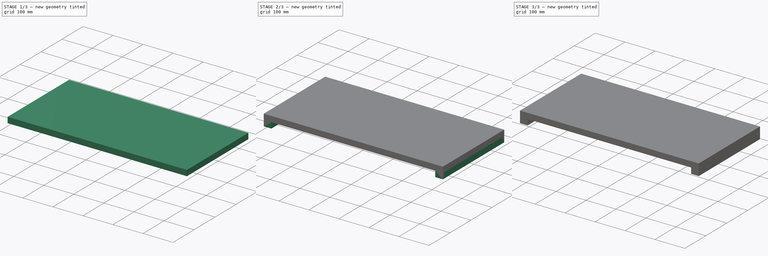
[diagram: build sequence overview — one tinted view per stage of 3, left to right]
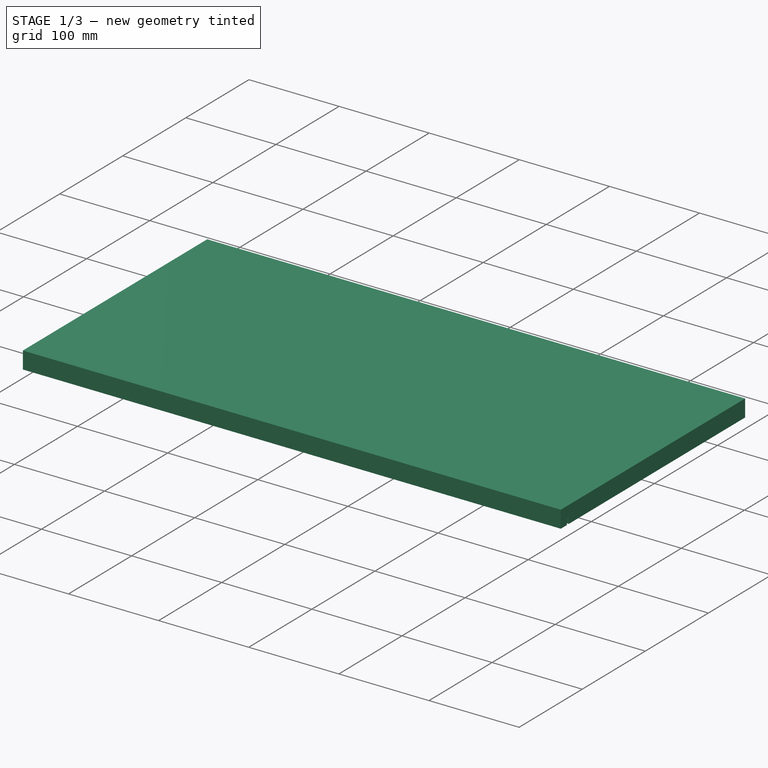
[diagram: stage 1 of 3 — iso view after this stage's code; geometry added in this stage tinted green]
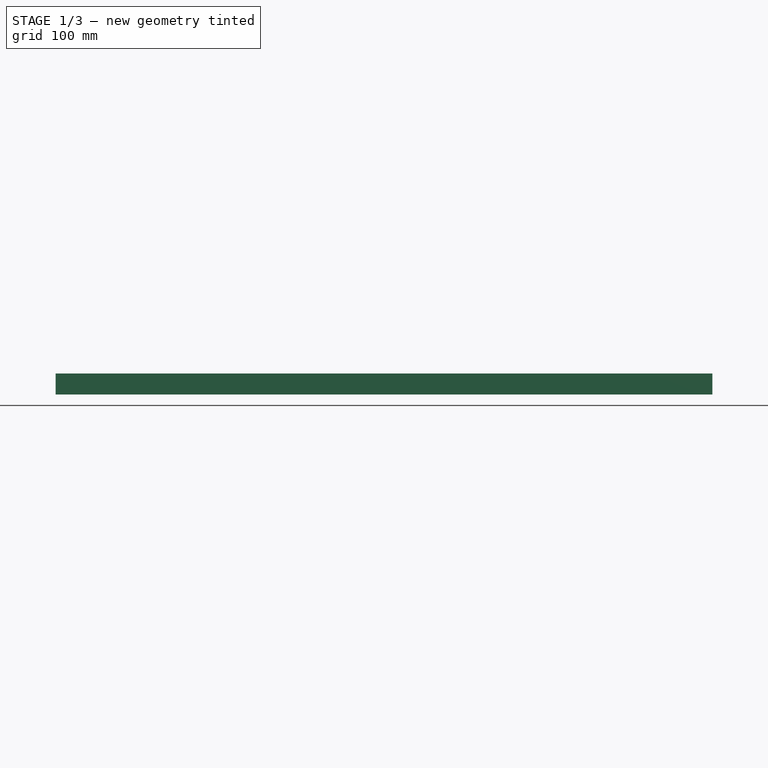
[diagram: stage 1 of 3 — front view after this stage's code; geometry added in this stage tinted green]
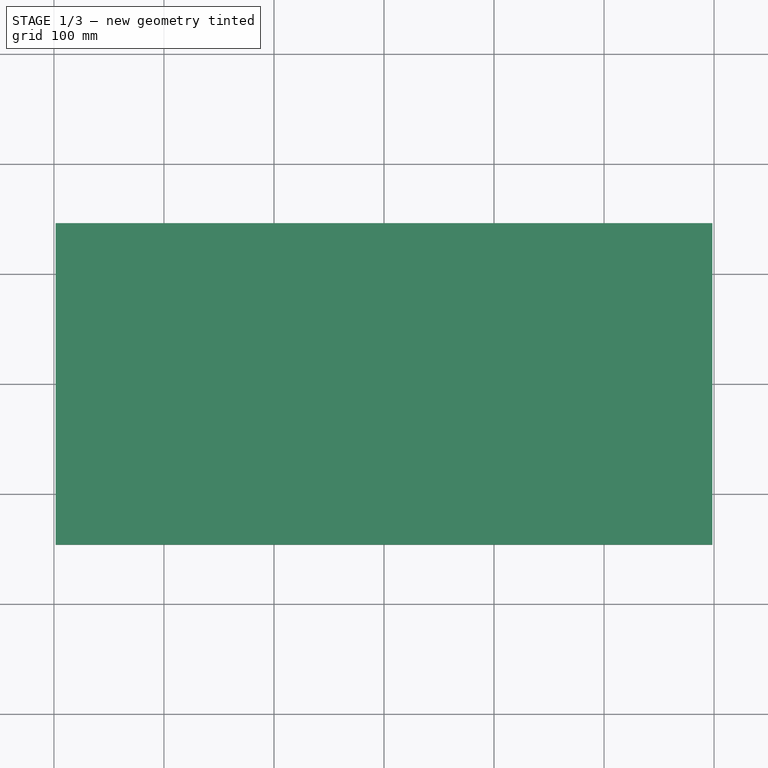
[diagram: stage 1 of 3 — top view after this stage's code; geometry added in this stage tinted green]
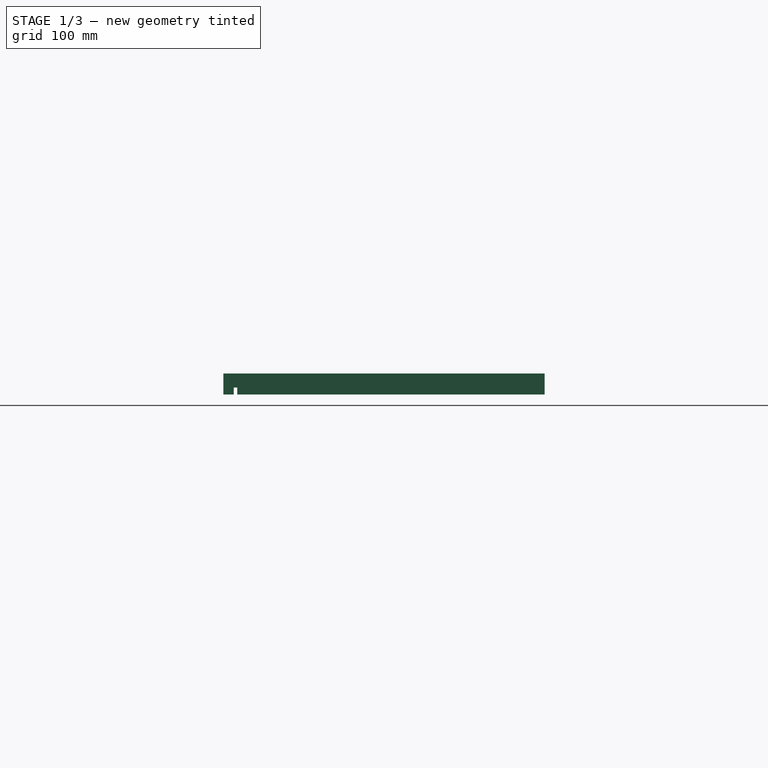
[diagram: stage 1 of 3 — right view after this stage's code; geometry added in this stage tinted green]
FCSTD DOCUMENT  (FreeCAD 0.19R24291 (Git))
Label: toppanel
License: All rights reserved
LicenseURL: http://en.wikipedia.org/wiki/All_rights_reserved
objects: PartDesign::SubtractiveBox×2, Part::FeaturePython×2, PartDesign::AdditiveBox×2, Sketcher::SketchObject×1, PartDesign::Pad×1, PartDesign::Body×1
note: 14 computed .brp shape members not serialized (recipe doc carries the construction recipe); baked Part::Feature solids carry a one-line shape summary decoded from their .brp

FEATURE [Sketcher::SketchObject] Sketch
  FullyConstrained = false
  MapMode = 5
  Support = -> [XY_Plane]
  sketch-geometry (4):
    g0: LineSegment StartX=-298.45 StartY=-146.05 StartZ=0 EndX=298.45 EndY=-146.05 EndZ=0
    g1: LineSegment StartX=298.45 StartY=-146.05 StartZ=0 EndX=298.45 EndY=146.05 EndZ=0
    g2: LineSegment StartX=298.45 StartY=146.05 StartZ=0 EndX=-298.45 EndY=146.05 EndZ=0
    g3: LineSegment StartX=-298.45 StartY=146.05 StartZ=0 EndX=-298.45 EndY=-146.05 EndZ=0
  constraints (8):
    c: Coincident(g0,g1)
    c: Coincident(g1,g2)
    c: Coincident(g2,g3)
    c: Coincident(g3,g0)
    c: Horizontal(g0)
    c: Horizontal(g2)
    c: Vertical(g1)
    c: Vertical(g3)
FEATURE [PartDesign::Pad] Pad
  Direction = (1,1,1)
  Length = 19.05
  Length2 = 99.9998
  Profile = -> Sketch
  Refine = true
  Type = 0
FEATURE [PartDesign::SubtractiveBox] Box
  AttacherType = Attacher::AttachEngine3D
  AttachmentOffset = pos=(-298.45,133.35,-6.35) rot=(0,0,1;0rad)
  BaseFeature = -> Pad
  Height = 6.35
  Length = 596.9
  MapMode = 5
  Placement = pos=(-298.45,-133.35,6.35) rot=(1,0,0;3.14159rad)
  Refine = true
  Support = -> [Pad]
  Width = 3.175
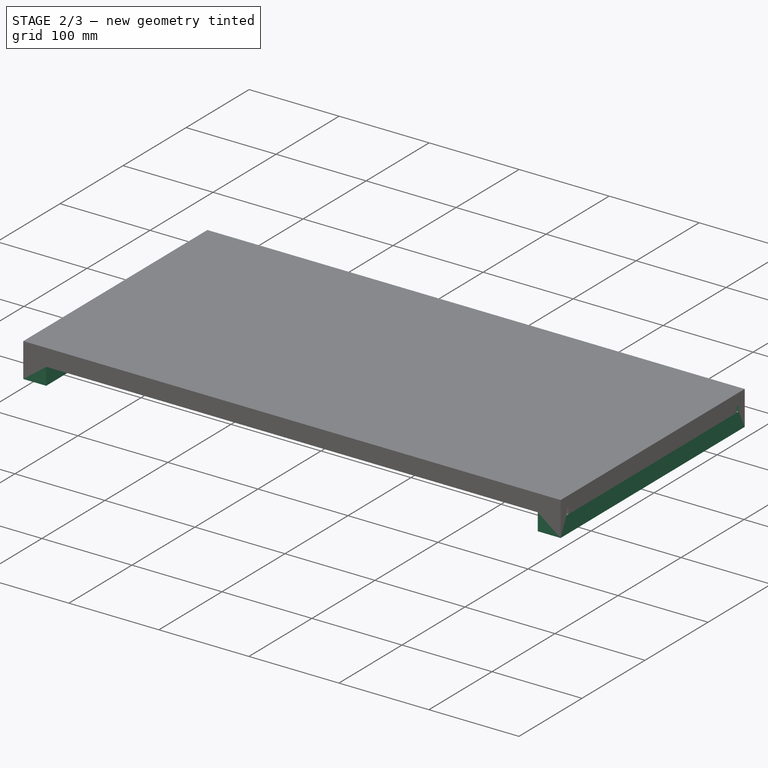
[diagram: stage 2 of 3 — iso view after this stage's code; geometry added in this stage tinted green]
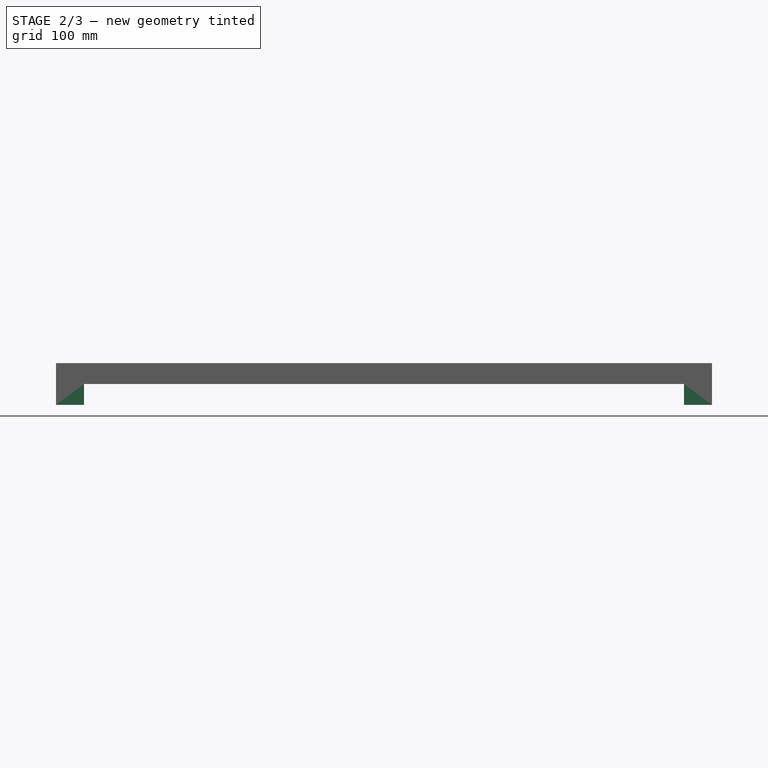
[diagram: stage 2 of 3 — front view after this stage's code; geometry added in this stage tinted green]
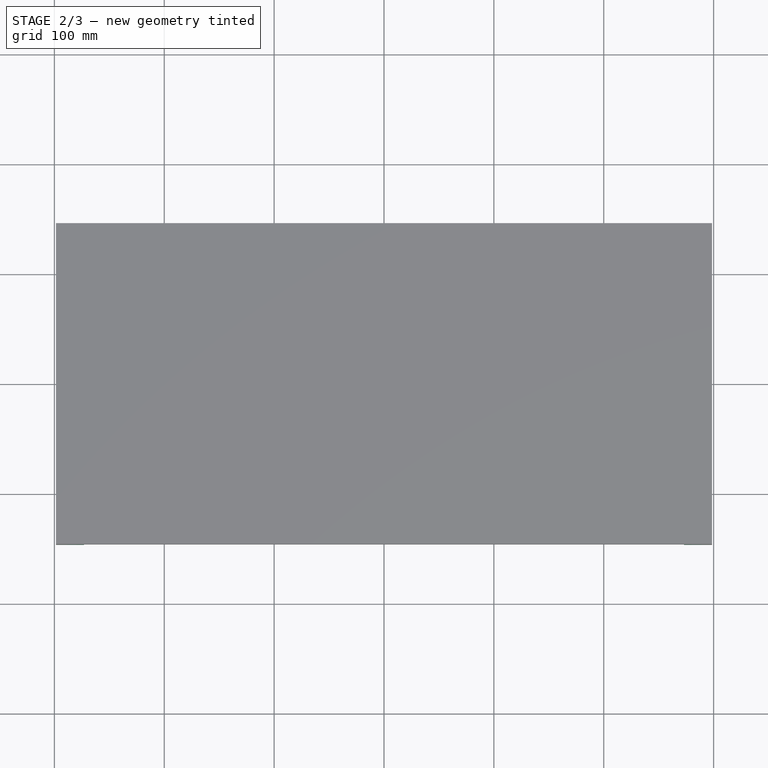
[diagram: stage 2 of 3 — top view after this stage's code; geometry added in this stage tinted green]
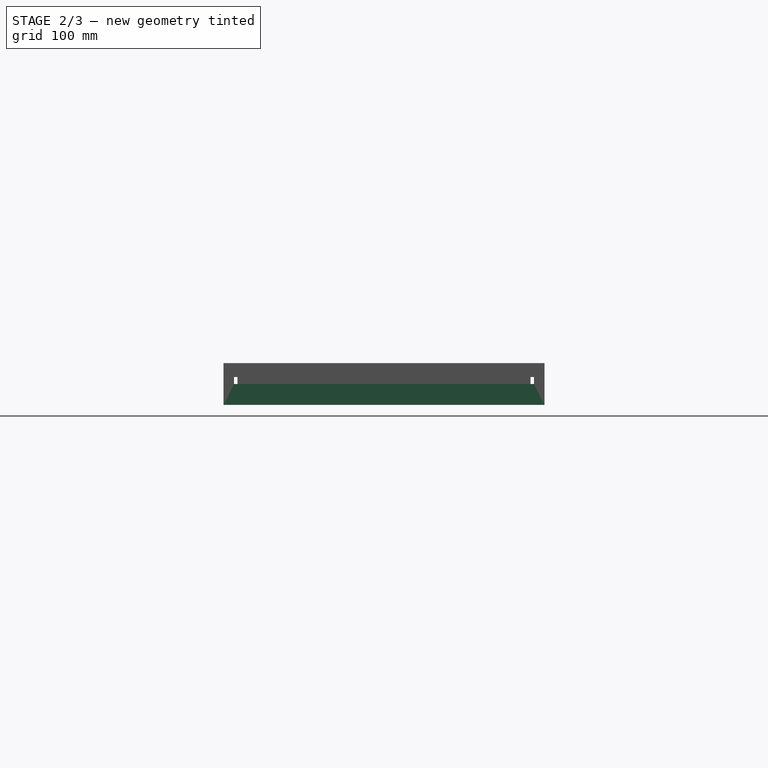
[diagram: stage 2 of 3 — right view after this stage's code; geometry added in this stage tinted green]
FEATURE [PartDesign::SubtractiveBox] Box001
  AttacherType = Attacher::AttachEngine3D
  AttachmentOffset = pos=(0,-269.875,-6.35) rot=(0,0,1;0rad)
  BaseFeature = -> Box
  Height = 6.35
  Length = 596.9
  MapMode = 5
  Placement = pos=(-298.45,136.525,6.35) rot=(1,0,0;3.14159rad)
  Refine = true
  Support = -> [Box]
  Width = 3.175
FEATURE [PartDesign::AdditiveBox] Box002  label="leftoutside"
  AttacherType = Attacher::AttachEngine3D
  AttachmentOffset = pos=(0,-9.525,0) rot=(0,0,1;0rad)
  BaseFeature = -> Box001
  Height = 19.05
  Length = 25.4
  MapMode = 5
  Placement = pos=(-298.45,146.05,3.12e-14) rot=(1,0,0;3.14159rad)
  Refine = true
  Support = -> [Box001]
  Width = 292.1
FEATURE [PartDesign::AdditiveBox] Box003  label="rightoutside"
  AttacherType = Attacher::AttachEngine3D
  AttachmentOffset = pos=(571.5,0,0) rot=(0,0,1;0rad)
  BaseFeature = -> Box002
  Height = 19.05
  Length = 25.4
  MapMode = 5
  Placement = pos=(273.05,146.05,3.08e-14) rot=(1,0,0;3.14159rad)
  Refine = true
  Support = -> [Box002]
  Width = 292.1
FEATURE [PartDesign::Body] Body
  Group = -> [Sketch,Pad,Box,Box001,Box002,Box003]
  Origin = -> Origin
  Tip = -> Box003
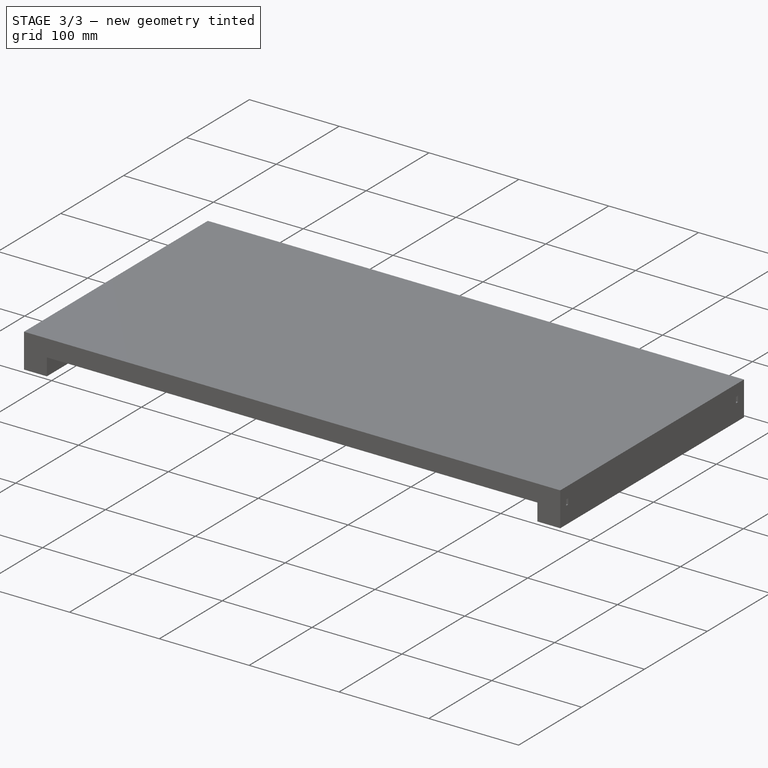
[diagram: stage 3 of 3 — iso view after this stage's code; geometry added in this stage tinted green]
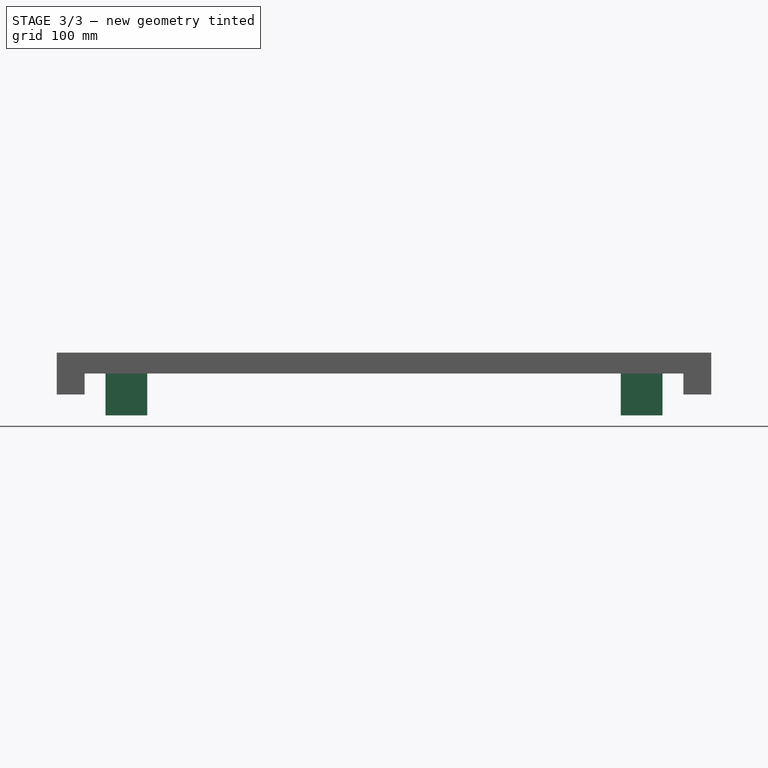
[diagram: stage 3 of 3 — front view after this stage's code; geometry added in this stage tinted green]
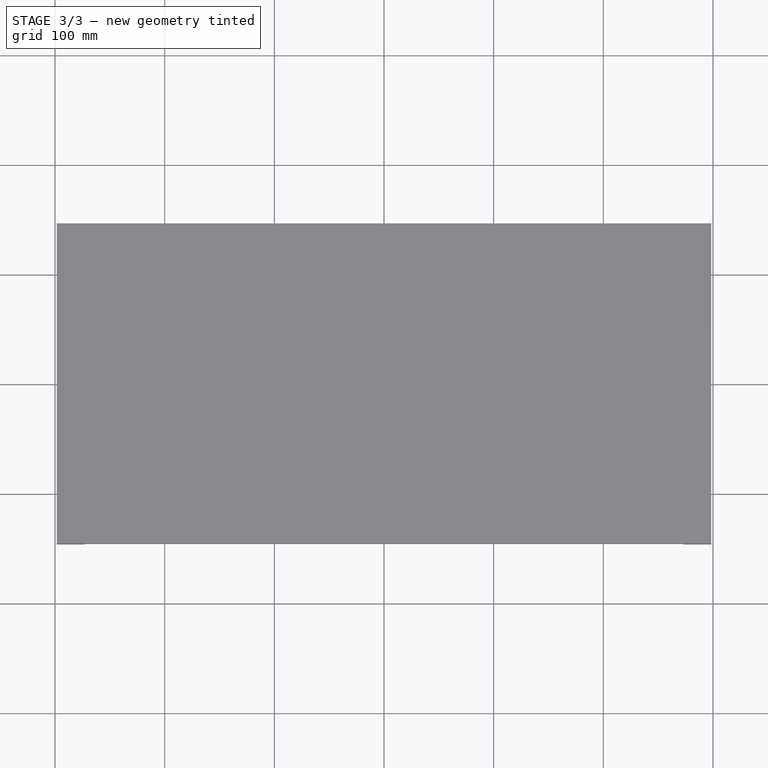
[diagram: stage 3 of 3 — top view after this stage's code; geometry added in this stage tinted green]
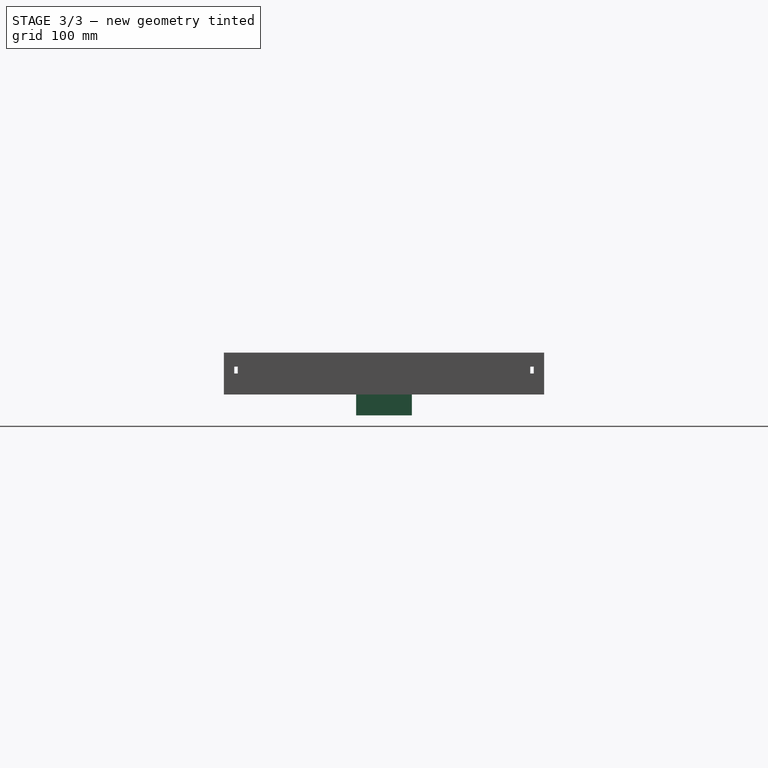
[diagram: stage 3 of 3 — right view after this stage's code; geometry added in this stage tinted green]
FEATURE [Part::FeaturePython] b_topblock_001_  label="topblock_right"  # a2plus imported part (geometry in sourceFile) (typed FeaturePython)
  Placement = pos=(215.9,-25.4,-38.1) rot=(0,0,1;0rad)
  a2p_Version = V0.1
  fixedPosition = true
  objectType = a2pPart
  sourceFile = ./topblock.FCStd
  subassemblyImport = false
  timeLastImport = 1.62937e+09
  updateColors = true
FEATURE [Part::FeaturePython] b_topblock_001_001  label="topblock_left"  # a2plus imported part (geometry in sourceFile) (typed FeaturePython)
  Placement = pos=(-254,-25.4,-38.1) rot=(0,0,1;0rad)
  a2p_Version = V0.1
  fixedPosition = false
  objectType = a2pPart
  sourceFile = ./topblock.FCStd
  subassemblyImport = false
  timeLastImport = 1.62937e+09
  updateColors = true
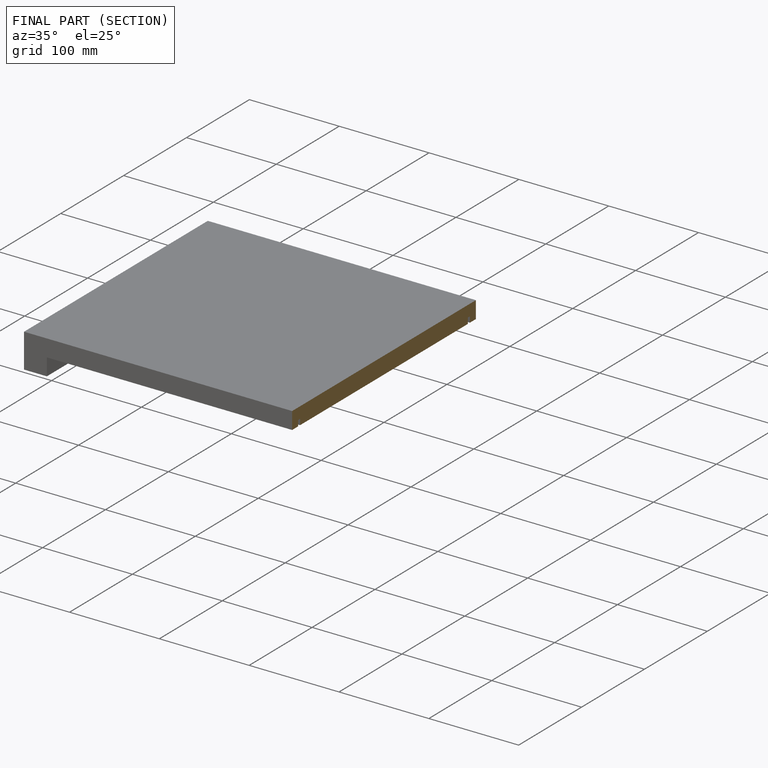
[diagram: finished part — half-section view (interior)]
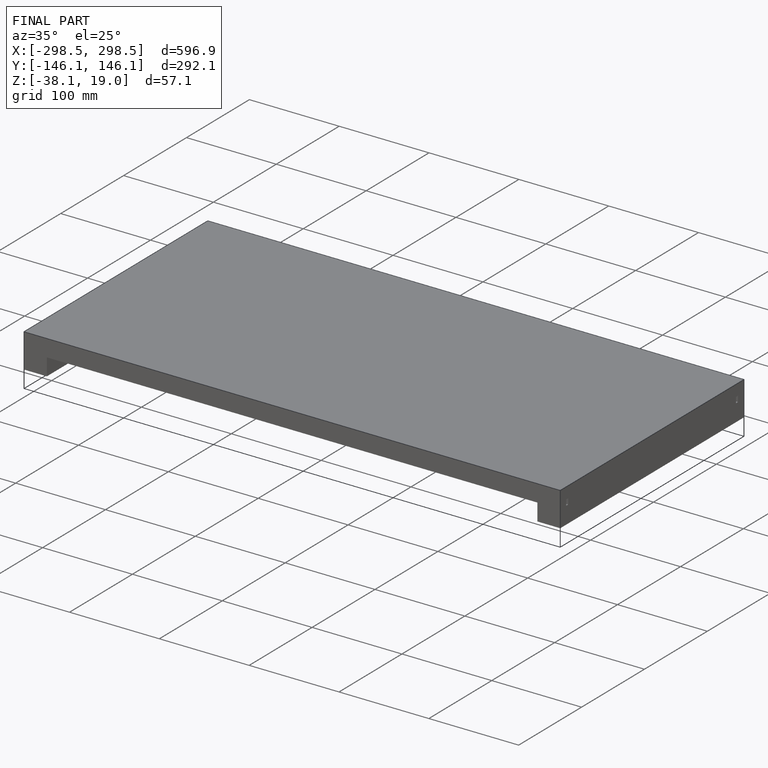
[diagram: finished part — iso view with bounding-box wireframe]
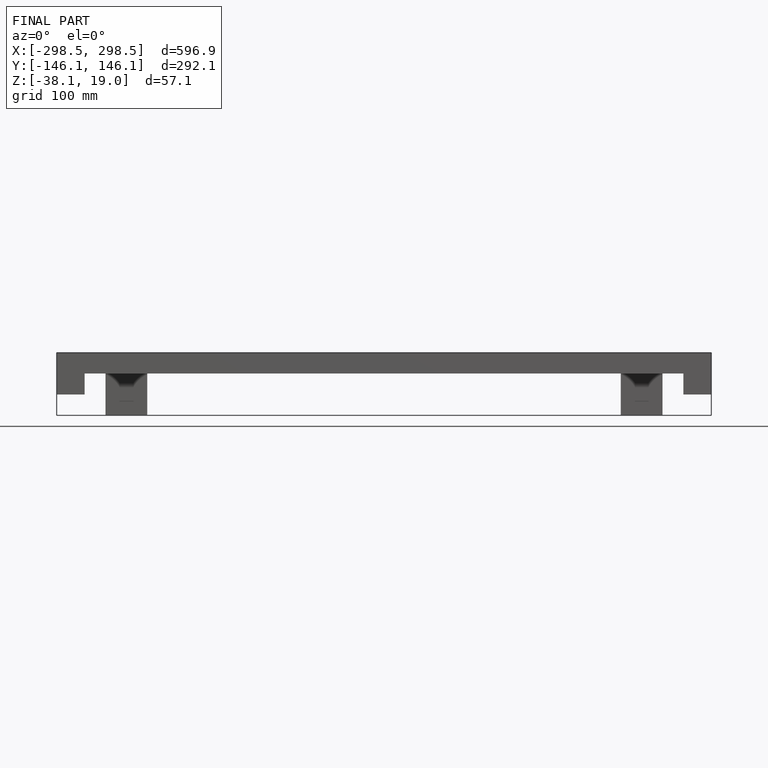
[diagram: finished part — front view with bounding-box wireframe]
